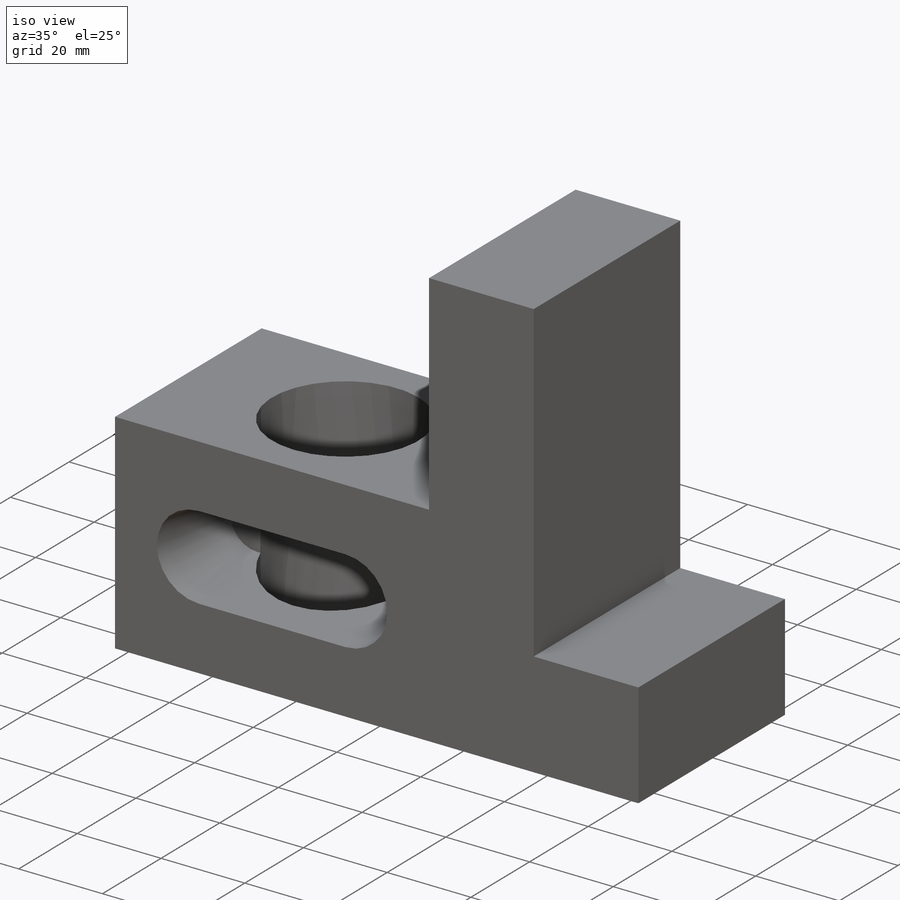
[diagram: iso view]
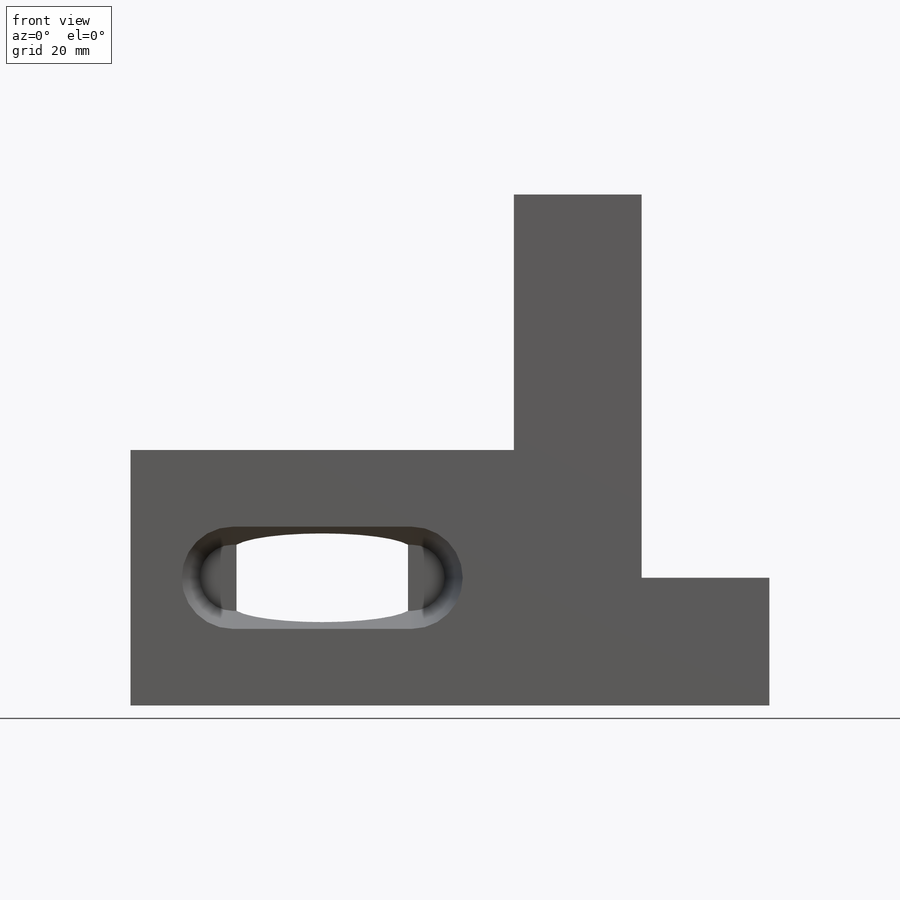
[diagram: front view]
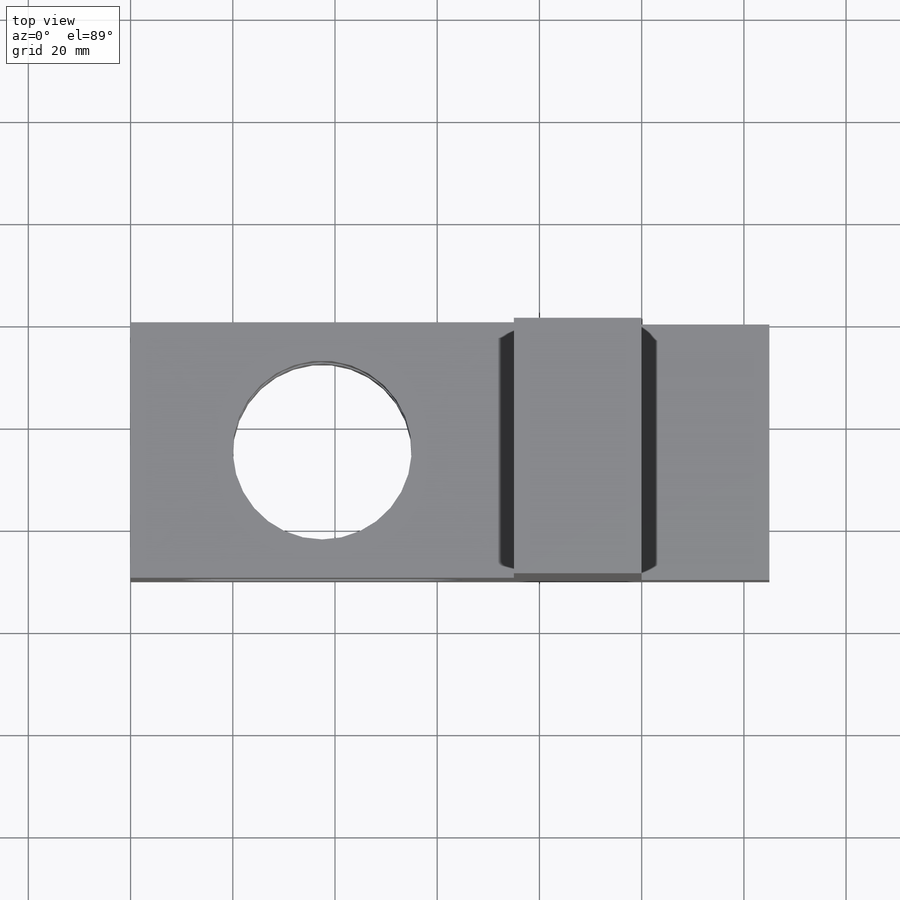
[diagram: top view]
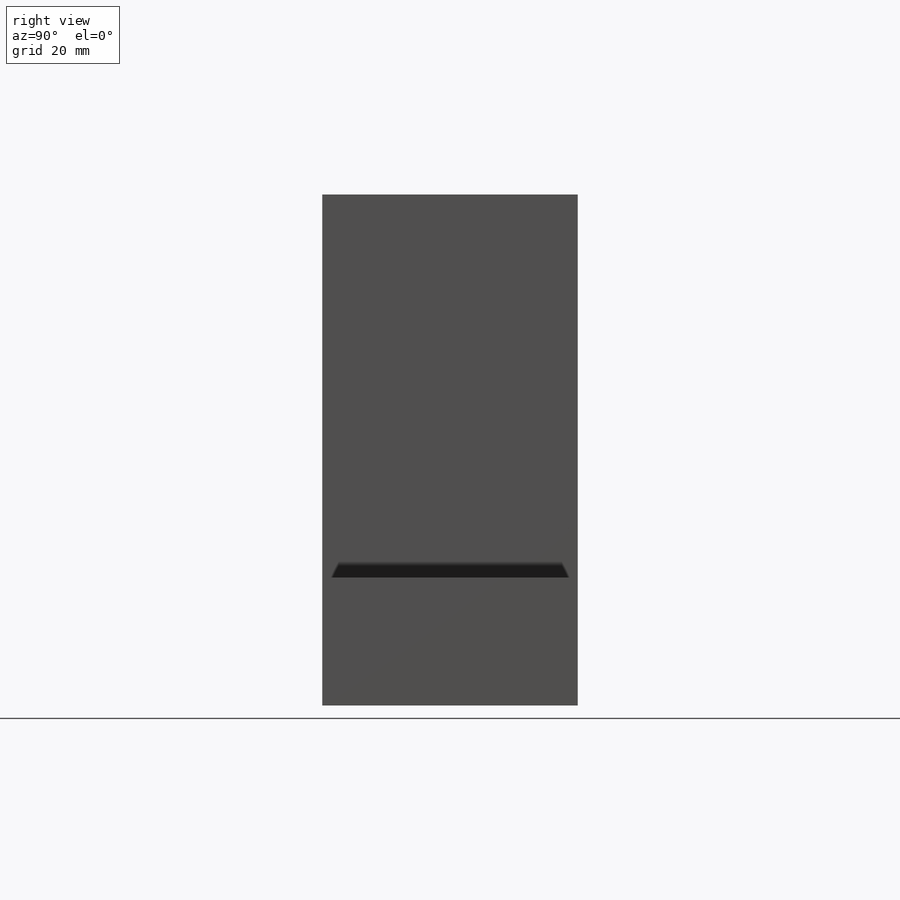
[diagram: right view]
SOLIDWORKS PART (.sldprt)
format: sldprt  version: not decoded by parser v0  size: 181,248 bytes
history: native  units: mm
features: sketch x4, cut_extrude x3, material x1, extrude x1 (+16 scaffold rows collapsed)
feature tree (25):
  scaffold x16  (default folders/planes/origin — collapsed)
  material  "Material <not specified>"
  sketch  "Base Sketch"  dims[D1=50.0mm D2=75.0mm D3=100.0mm D4=25.0mm D5=25.0mm D6=25.0mm]
  extrude  "Base Extrusion"  Depth=50mm
  sketch  "Front Cut Sketch"  dims[c1.D3=10.0mm c1.D1=25.0mm c1.D2=35.0mm c2.D1=25.0mm c2.D2=37.5mm c2.D4=35.0mm]
  cut_extrude  "Front Cut"  Depth=20mm
  sketch  "Back Cut Sketch"
  cut_extrude  "Back Cut"  Depth=20mm
  sketch  "Top Cut Sketch"  dims[c1.D1=35.0mm c1.D2=35.0mm c1.D3=35.0mm c2.D2=25.0mm c2.D3=37.5mm]
  cut_extrude  "Top Cut"  Depth=50mm
decode coverage: 7 of 8 modeling features carry decoded parameters
note: suppression state not decoded; provenance and decode notes live in map.json
